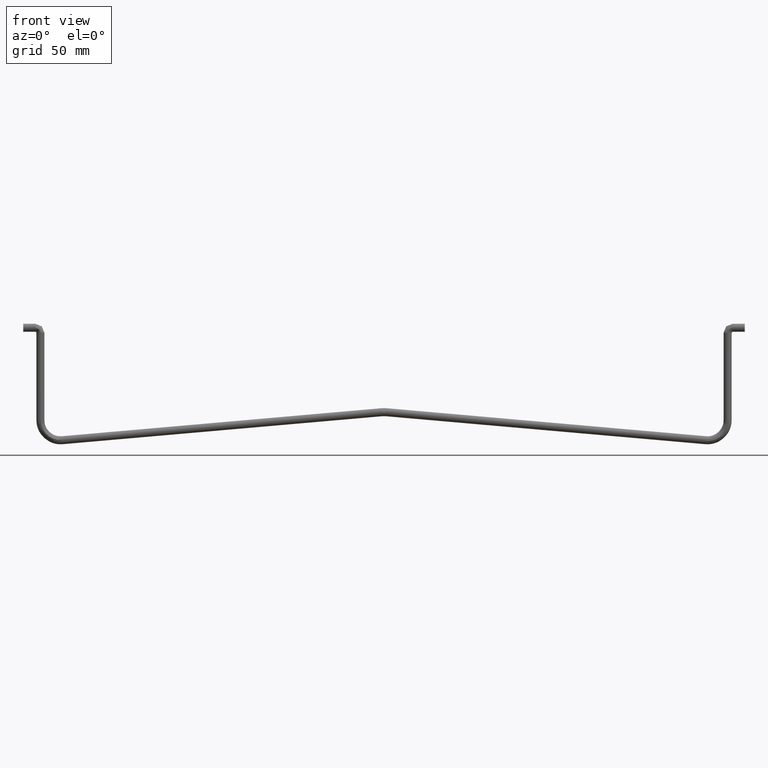
[diagram: clean part render]
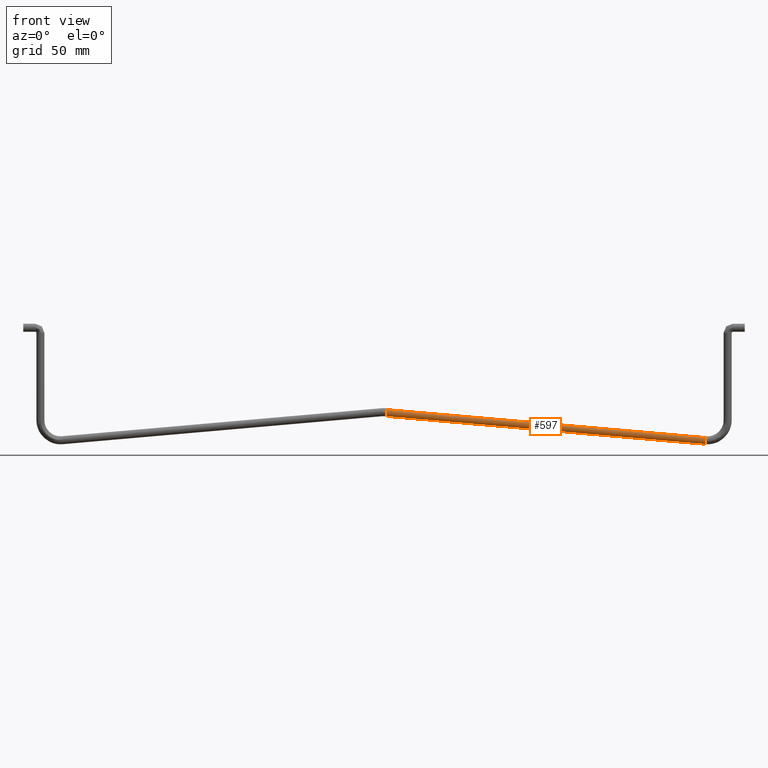
[diagram: same view with one face highlighted and labeled with its STEP entity id]
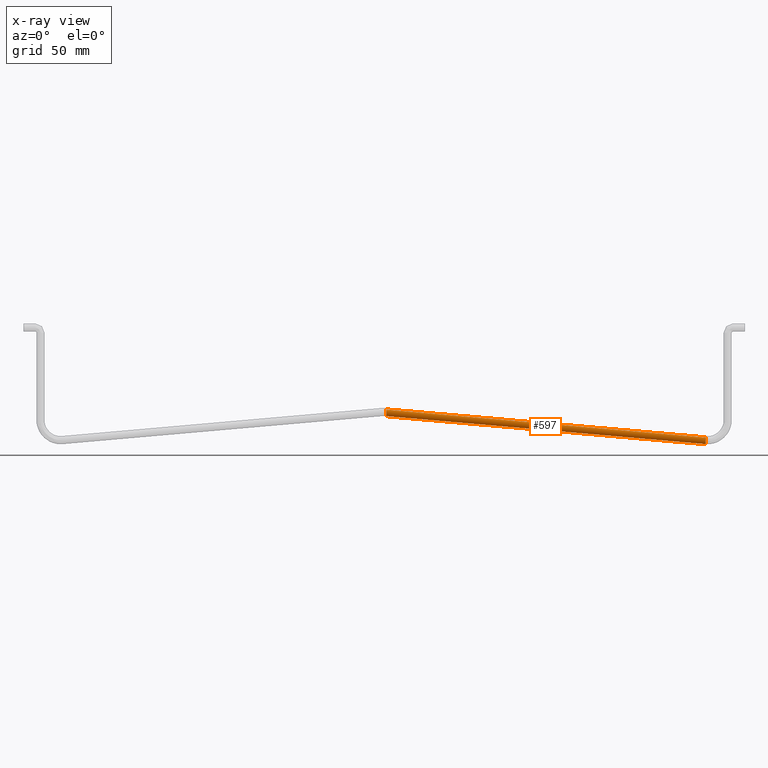
[diagram: x-ray of the same camera — body ghosted, the highlighted face saturated]
A machine part, front view. The second image highlights one B-rep face of the part: STEP entity #597.
The next image is the same camera in x-ray: the body ghosted, the highlighted face saturated — about 0% of this face is hidden behind the body in this view.
In plain terms, the highlighted face is a freeform B-spline surface patch.
Its self-contained STEP definition (entity closure, byte-faithful):
#428=CARTESIAN_POINT('',(1.109730056046620,1.537014305096715,-45.320518713547393));
#429=VERTEX_POINT('',#428);
#450=CARTESIAN_POINT('',(1.333011082138430,-1.537013285860221,-42.770910909709407));
#451=VERTEX_POINT('',#450);
#460=CARTESIAN_POINT('',(160.239233077835510,-1.537013299147724,-56.687067887136273));
#461=VERTEX_POINT('',#460);
#462=CARTESIAN_POINT('',(1.333011082138430,-1.537013285860221,-42.770910909709407));
#463=CARTESIAN_POINT('',(160.239233077835510,-1.537013299147724,-56.687067887136273));
#464=QUASI_UNIFORM_CURVE('',1,(#462,#463),.UNSPECIFIED.,.F.,.U.);
#465=EDGE_CURVE('',#451,#461,#464,.T.);
#489=CARTESIAN_POINT('',(160.015951942390500,1.537013453807901,-59.236676691769887));
#490=VERTEX_POINT('',#489);
#499=CARTESIAN_POINT('',(1.109730056046620,1.537014305096715,-45.320518713547393));
#500=CARTESIAN_POINT('',(160.015951942390500,1.537013453807901,-59.236676691769887));
#501=QUASI_UNIFORM_CURVE('',1,(#499,#500),.UNSPECIFIED.,.F.,.U.);
#502=EDGE_CURVE('',#429,#490,#501,.T.);
#507=CARTESIAN_POINT('',(-2.639644567355670,-1.537013838790832,-42.423007643612081));
#508=CARTESIAN_POINT('',(-2.773734809797448,-2.816696791465230,-43.954161243848333));
#509=CARTESIAN_POINT('',(-2.885375312336913,-1.279682952674397,-45.228965094469359));
#510=CARTESIAN_POINT('',(-2.997015814876377,0.257330886116436,-46.503768945090386));
#511=CARTESIAN_POINT('',(-2.862925572434599,1.537013838790834,-44.972615344854127));
#512=CARTESIAN_POINT('',(164.311205526357500,-1.537013838790835,-57.043670104564939));
#513=CARTESIAN_POINT('',(164.177115283915750,-2.816696791465233,-58.574823704801190));
#514=CARTESIAN_POINT('',(164.065474781376200,-1.279682952674400,-59.849627555422217));
#515=CARTESIAN_POINT('',(163.953834278836750,0.257330886116433,-61.124431406043250));
#516=CARTESIAN_POINT('',(164.087924521278500,1.537013838790831,-59.593277805806991));
#524=(BOUNDED_SURFACE()B_SPLINE_SURFACE(2,1,((#507,#512),(#508,#513),(#509,#514),(#510,#515),(#511,#516)),.UNSPECIFIED.,.F.,.F.,.U.)B_SPLINE_SURFACE_WITH_KNOTS((3,2,3),(2,2),(0.0,3.313708498984763,6.627416997969525),(0.0,167.589827011697200),.UNSPECIFIED.)GEOMETRIC_REPRESENTATION_ITEM()RATIONAL_B_SPLINE_SURFACE(((1.0,1.0),(0.707106781186548,0.707106781186548),(1.0,1.0),(0.707106781186548,0.707106781186548),(1.0,1.0)))REPRESENTATION_ITEM('')SURFACE());
#525=CARTESIAN_POINT('',(1.046902767729845,0.025132086568916,-46.037932624197602));
#526=VERTEX_POINT('',#525);
#527=CARTESIAN_POINT('',(1.109730056046620,1.537014305096715,-45.320518713547393));
#528=CARTESIAN_POINT('',(1.092820378142951,1.375965882502014,-45.513607412551707));
#529=CARTESIAN_POINT('',(1.060390858186127,0.922526584244120,-45.883914503078003));
#530=CARTESIAN_POINT('',(1.047196748201438,0.349255398228604,-46.034575737012553));
#531=CARTESIAN_POINT('',(1.046902767729845,0.025132086568916,-46.037932624197602));
#532=B_SPLINE_CURVE_WITH_KNOTS('',3,(#527,#528,#529,#530,#531),.UNSPECIFIED.,.F.,.U.,(4,1,4),(0.000000276566365,0.756039127902834,1.728086335331609),.UNSPECIFIED.);
#533=EDGE_CURVE('',#429,#526,#532,.T.);
#534=ORIENTED_EDGE('',*,*,#533,.F.);
#535=ORIENTED_EDGE('',*,*,#502,.T.);
#536=CARTESIAN_POINT('',(159.953110981376200,-3.240610E-015,-59.954246894704468));
#537=VERTEX_POINT('',#536);
#538=CARTESIAN_POINT('',(160.015951942390500,1.537013453807901,-59.236676691769887));
#539=CARTESIAN_POINT('',(160.003707686243100,1.420204842003964,-59.376491757527262));
#540=CARTESIAN_POINT('',(159.979859571050410,1.120623054086466,-59.648809305822688));
#541=CARTESIAN_POINT('',(159.957938802110390,0.584342130635552,-59.899118823111003));
#542=CARTESIAN_POINT('',(159.953106336106000,0.182605126723043,-59.954299933919224));
#543=CARTESIAN_POINT('',(159.953110981376200,-3.240610E-015,-59.954246894704468));
#544=B_SPLINE_CURVE_WITH_KNOTS('',3,(#538,#539,#540,#541,#542,#543),.UNSPECIFIED.,.F.,.U.,(4,1,1,4),(0.000000305310096,0.547832672669062,1.205230522401720,1.753062889760739),.UNSPECIFIED.);
#545=EDGE_CURVE('',#490,#537,#544,.T.);
#546=ORIENTED_EDGE('',*,*,#545,.T.);
#547=CARTESIAN_POINT('',(160.090154240396000,-1.953416385843180,-58.389380042830780));
#548=VERTEX_POINT('',#547);
#549=CARTESIAN_POINT('',(159.953110981376200,-3.240610E-015,-59.954246894704468));
#550=CARTESIAN_POINT('',(159.953088885150010,-0.254027889301903,-59.954499206658362));
#551=CARTESIAN_POINT('',(159.961194523483300,-0.733510422899585,-59.861942704183889));
#552=CARTESIAN_POINT('',(159.993832246834300,-1.343676749099497,-59.489259715208370));
#553=CARTESIAN_POINT('',(160.038435068656210,-1.758510050646770,-58.979949896753403));
#554=CARTESIAN_POINT('',(160.073322396602210,-1.911090753234595,-58.581579167388767));
#555=CARTESIAN_POINT('',(160.090154240396000,-1.953416385843180,-58.389380042830780));
#556=B_SPLINE_CURVE_WITH_KNOTS('',3,(#549,#550,#551,#552,#553,#554,#555),.UNSPECIFIED.,.F.,.U.,(4,1,1,1,4),(0.000000736131915,0.762002263029179,1.439250059905263,2.116645725979684,2.709287662032716),.UNSPECIFIED.);
#557=EDGE_CURVE('',#537,#548,#556,.T.);
#558=ORIENTED_EDGE('',*,*,#557,.T.);
#559=CARTESIAN_POINT('',(160.090154240396000,-1.953416385843180,-58.389380042830780));
#560=CARTESIAN_POINT('',(160.114399907945510,-2.014832063980898,-58.112521653245061));
#561=CARTESIAN_POINT('',(160.168566585725190,-2.015893607599810,-57.493999040206468));
#562=CARTESIAN_POINT('',(160.217642582789810,-1.743926016651952,-56.933606739787898));
#563=CARTESIAN_POINT('',(160.239233077835510,-1.537013299147724,-56.687067887136273));
#564=B_SPLINE_CURVE_WITH_KNOTS('',3,(#559,#560,#561,#562,#563),.UNSPECIFIED.,.F.,.U.,(4,1,4),(0.000000294516994,0.853728583088876,1.821153232350909),.UNSPECIFIED.);
#565=EDGE_CURVE('',#548,#461,#564,.T.);
#566=ORIENTED_EDGE('',*,*,#565,.T.);
#567=ORIENTED_EDGE('',*,*,#465,.F.);
#568=CARTESIAN_POINT('',(1.209203355648300,-1.995131345321290,-44.184650208733203));
#569=VERTEX_POINT('',#568);
#570=CARTESIAN_POINT('',(1.209203355648300,-1.995131345321290,-44.184650208733203));
#571=CARTESIAN_POINT('',(1.234143163988123,-2.015544656502887,-43.899866793879042));
#572=CARTESIAN_POINT('',(1.279119357238495,-1.939366478499966,-43.386291319220561));
#573=CARTESIAN_POINT('',(1.318075312583500,-1.679720863924138,-42.941459913385764));
#574=CARTESIAN_POINT('',(1.333011082138430,-1.537013285860221,-42.770910909709407));
#575=B_SPLINE_CURVE_WITH_KNOTS('',3,(#570,#571,#572,#573,#574),.UNSPECIFIED.,.F.,.U.,(4,1,4),(0.000000296349865,0.859649358664824,1.528309696782070),.UNSPECIFIED.);
#576=EDGE_CURVE('',#569,#451,#575,.T.);
#577=ORIENTED_EDGE('',*,*,#576,.F.);
#578=CARTESIAN_POINT('',(1.046889018616510,7.673443E-016,-46.038089936182622));
#579=VERTEX_POINT('',#578);
#580=CARTESIAN_POINT('',(1.046889018616510,7.673443E-016,-46.038089936182622));
#581=CARTESIAN_POINT('',(1.046879673513744,-0.218889852724910,-46.038196646317061));
#582=CARTESIAN_POINT('',(1.053668645644713,-0.687958239450179,-45.960674531597093));
#583=CARTESIAN_POINT('',(1.085153310451783,-1.324744045322242,-45.601156514729382));
#584=CARTESIAN_POINT('',(1.139167990937677,-1.824604823044467,-44.984372091930972));
#585=CARTESIAN_POINT('',(1.184701098346636,-1.975880337725386,-44.464437305335750));
#586=CARTESIAN_POINT('',(1.209203355648300,-1.995131345321290,-44.184650208733203));
#587=B_SPLINE_CURVE_WITH_KNOTS('',3,(#580,#581,#582,#583,#584,#585,#586),.UNSPECIFIED.,.F.,.U.,(4,1,1,1,4),(0.000000830798141,0.656745054862239,1.407369569249312,2.157888540932949,3.002287802939501),.UNSPECIFIED.);
#588=EDGE_CURVE('',#579,#569,#587,.T.);
#589=ORIENTED_EDGE('',*,*,#588,.F.);
#590=CARTESIAN_POINT('',(1.046902767729845,0.025132086568916,-46.037932624197602));
#591=CARTESIAN_POINT('',(1.046889018616510,7.673443E-016,-46.038089936182622));
#592=QUASI_UNIFORM_CURVE('',1,(#590,#591),.UNSPECIFIED.,.F.,.U.);
#593=EDGE_CURVE('',#526,#579,#592,.T.);
#594=ORIENTED_EDGE('',*,*,#593,.F.);
#595=EDGE_LOOP('',(#534,#535,#546,#558,#566,#567,#577,#589,#594));
#596=FACE_OUTER_BOUND('',#595,.T.);
#597=ADVANCED_FACE('',(#596),#524,.T.);